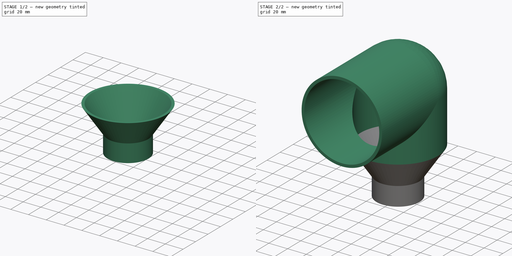
[diagram: build sequence overview — one tinted view per stage of 2, left to right]
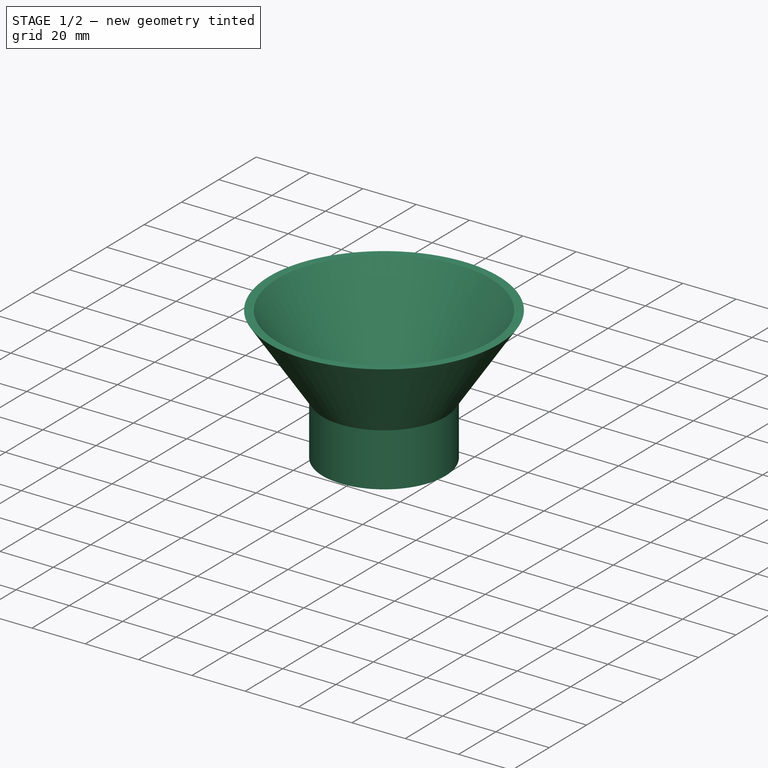
[diagram: stage 1 of 2 — iso view after this stage's code; geometry added in this stage tinted green]
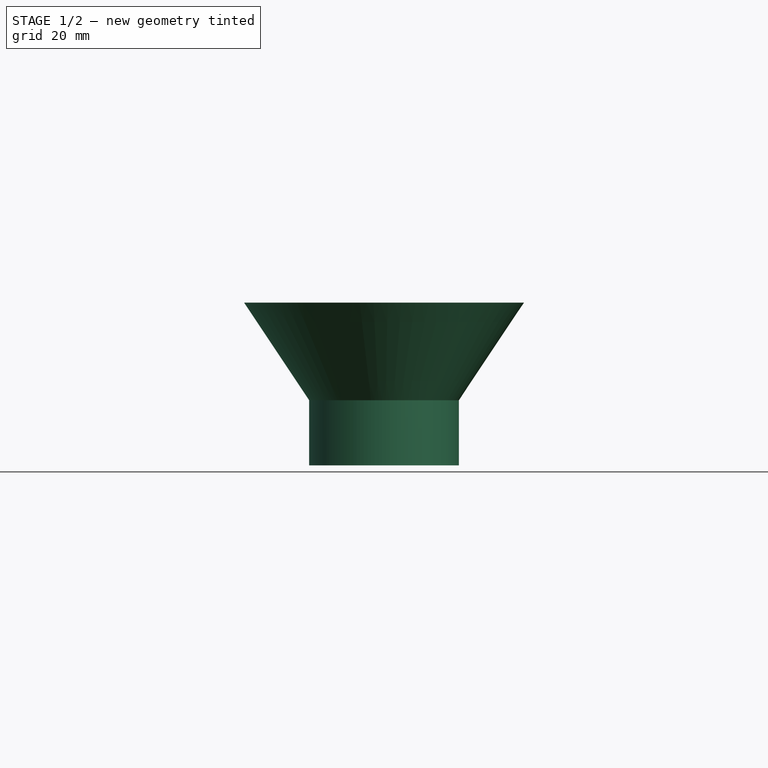
[diagram: stage 1 of 2 — front view after this stage's code; geometry added in this stage tinted green]
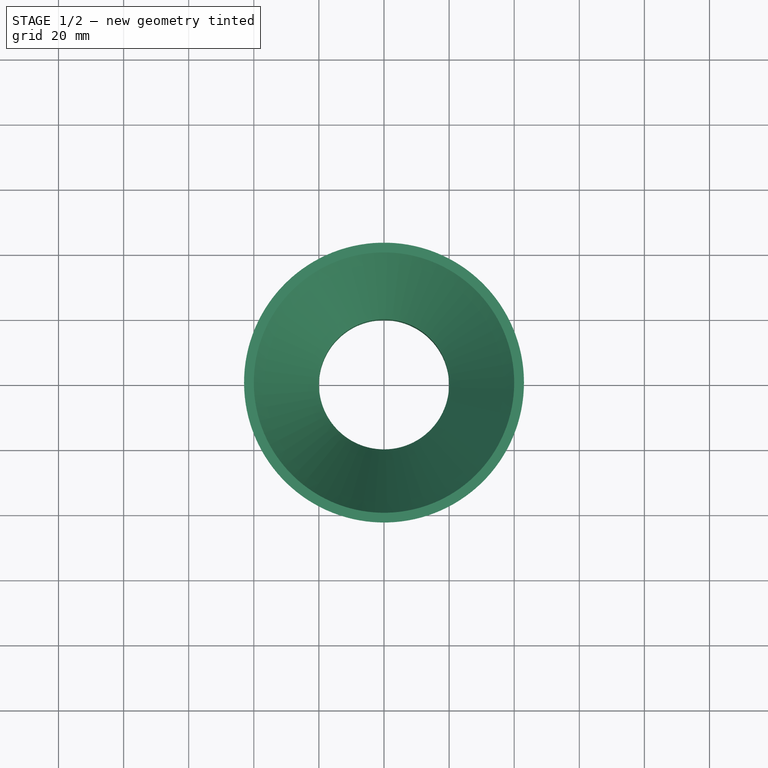
[diagram: stage 1 of 2 — top view after this stage's code; geometry added in this stage tinted green]
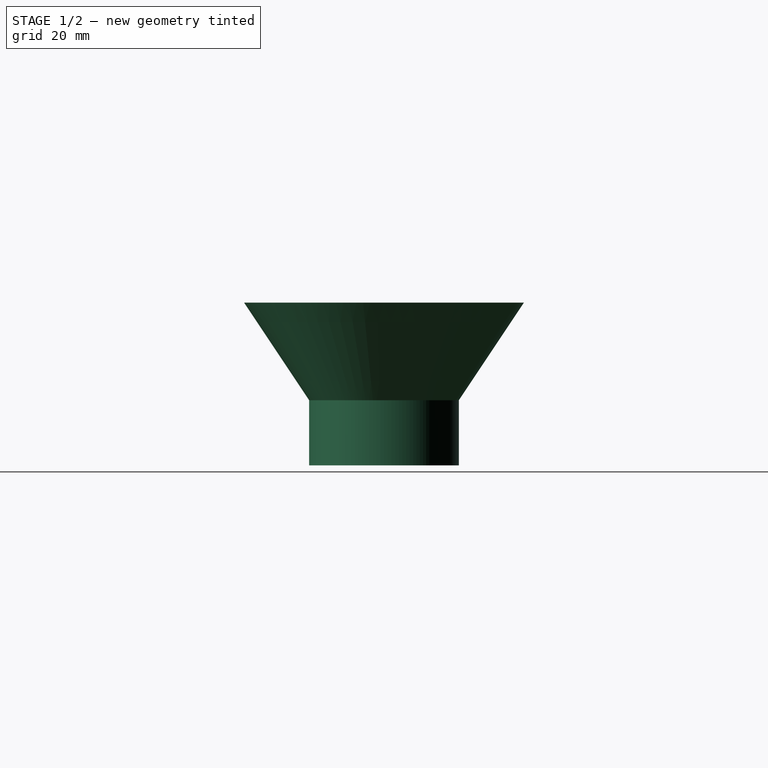
[diagram: stage 1 of 2 — right view after this stage's code; geometry added in this stage tinted green]
FCSTD DOCUMENT  (FreeCAD 1.0R39285 (Git))
Label: Lesson_26
License: All rights reserved
LicenseURL: http://en.wikipedia.org/wiki/All_rights_reserved
objects: Sketcher::SketchObject×2, PartDesign::Revolution×1, PartDesign::AdditivePipe×1, PartDesign::Body×1
note: 11 computed .brp shape members not serialized (recipe doc carries the construction recipe); baked Part::Feature solids carry a one-line shape summary decoded from their .brp

FEATURE [Sketcher::SketchObject] Sketch
  ArcFitTolerance = 1e-06
  AttachmentSupport = -> [XZ_Plane]
  FullyConstrained = true
  MakeInternals = false
  MapMode = 5
  Placement = pos=(0,0,0) rot=(1,0,0;1.5708rad)
  sketch-geometry (9):
    g0: LineSegment StartX=-23 StartY=0 StartZ=0 EndX=-23 EndY=20 EndZ=0
    g1: LineSegment StartX=-23 StartY=20 StartZ=0 EndX=-43 EndY=50 EndZ=0
    g2: LineSegment [constr] StartX=-43 StartY=50 StartZ=0 EndX=-43 EndY=60 EndZ=0
    g3: LineSegment [constr] StartX=-43 StartY=60 StartZ=0 EndX=-40 EndY=60 EndZ=0
    g4: LineSegment [constr] StartX=-40 StartY=60 StartZ=0 EndX=-40 EndY=50 EndZ=0
    g5: LineSegment StartX=-40 StartY=50 StartZ=0 EndX=-20 EndY=20 EndZ=0
    g6: LineSegment StartX=-20 StartY=20 StartZ=0 EndX=-20 EndY=0 EndZ=0
    g7: LineSegment StartX=-20 StartY=0 StartZ=0 EndX=-23 EndY=0 EndZ=0
    g8: LineSegment StartX=-43 StartY=50 StartZ=0 EndX=-40 EndY=50 EndZ=0
  constraints (26):
    c: Vertical(g0)
    c: Coincident(g0,g1)
    c: Coincident(g1,g2)
    c: Vertical(g2)
    c: Coincident(g2,g3)
    c: Horizontal(g3)
    c: Coincident(g3,g4)
    c: Coincident(g4,g5)
    c: Coincident(g5,g6)
    c: Vertical(g6)
    c: Coincident(g6,g7)
    c: Coincident(g7,g0)
    c: Parallel(g1,g5)
    c: Vertical(g4)
    c: Horizontal(g7)
    c: Horizontal(g4,g1)
    c: Horizontal(g5,g0)
    c: Distance(g3,g3) = 3
    c: PointOnObject(g0,g-1)
    c: DistanceY(g2,g2) = 10
    c: DistanceY(g0,g0) = 20
    c: DistanceY(g0,g1) = 30
    c: DistanceX(g3,g-1) = 40
    c: DistanceX(g6,g-1) = 20
    c: Coincident(g8,g1)
    c: Coincident(g8,g4)
FEATURE [PartDesign::Revolution] Revolution
  Angle = 360
  Angle2 = 60
  Axis = (0,2e-16,1)
  Base = (0,0,0)
  Placement = pos=(0,0,0) rot=(1,0,0;1.5708rad)
  Profile = -> Sketch
  ReferenceAxis = -> Sketch [V_Axis]
  Refine = true
  Suppressed = false
  Type = 0
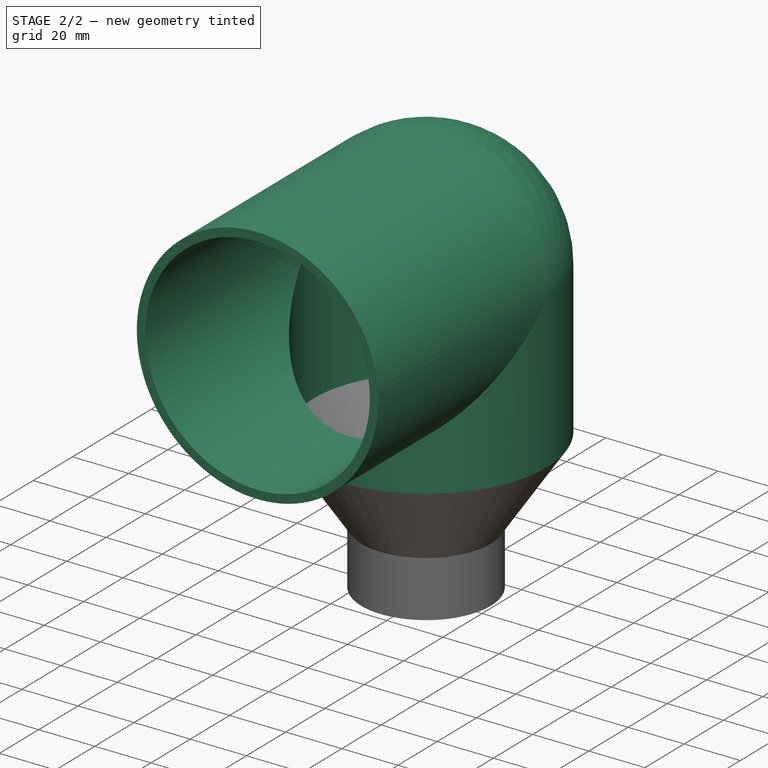
[diagram: stage 2 of 2 — iso view after this stage's code; geometry added in this stage tinted green]
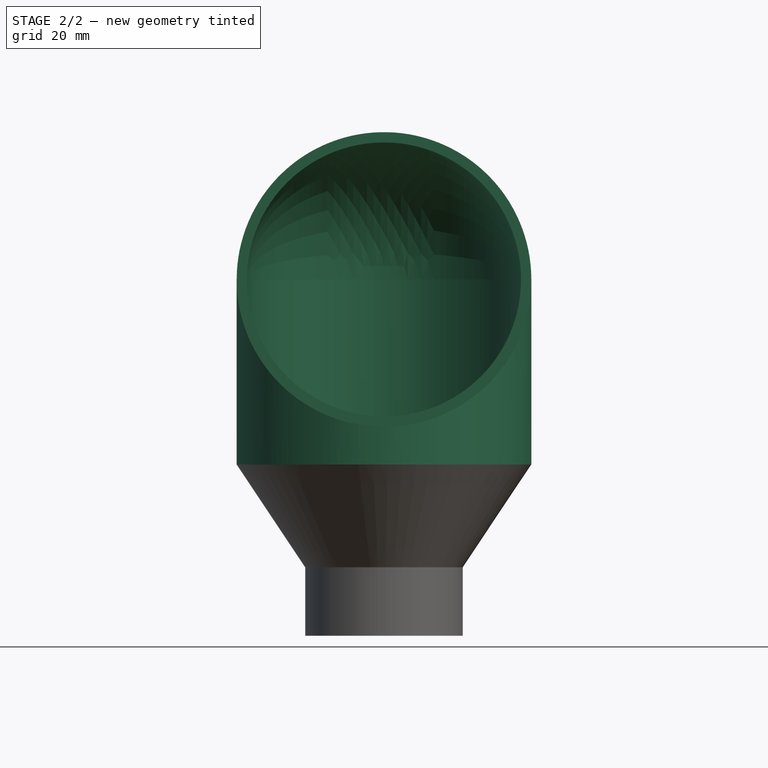
[diagram: stage 2 of 2 — front view after this stage's code; geometry added in this stage tinted green]
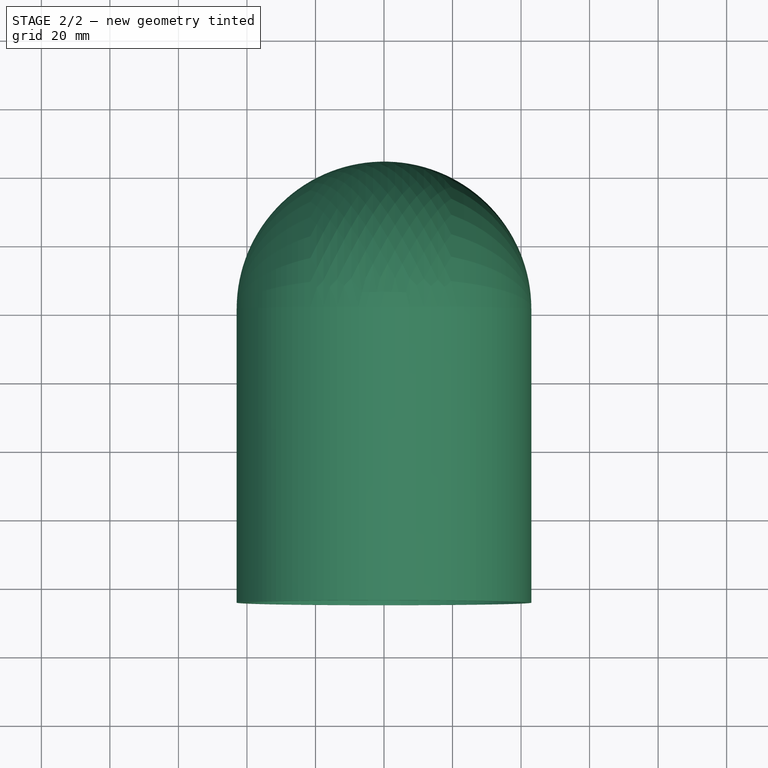
[diagram: stage 2 of 2 — top view after this stage's code; geometry added in this stage tinted green]
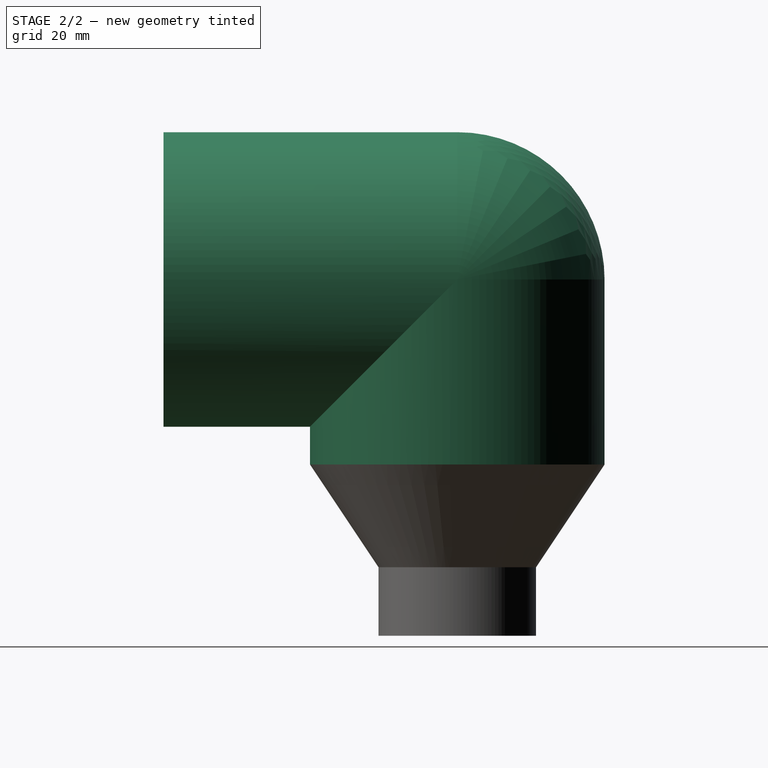
[diagram: stage 2 of 2 — right view after this stage's code; geometry added in this stage tinted green]
FEATURE [Sketcher::SketchObject] Sketch001
  ArcFitTolerance = 1e-06
  AttachmentSupport = -> [YZ_Plane]
  ExternalGeometry = -> [Revolution]
  FullyConstrained = false
  MakeInternals = false
  MapMode = 5
  Placement = pos=(0,0,0) rot=(0.57735,0.57735,0.57735;2.0944rad)
  expr: Constraints[4] = 44 + 10
  sketch-geometry (2):
    g0: LineSegment StartX=0 StartY=50 StartZ=0 EndX=0 EndY=104 EndZ=0
    g1: LineSegment StartX=0 StartY=104 StartZ=0 EndX=-85.7569 EndY=104 EndZ=0
  constraints (7):
    c: Vertical(g0)
    c: Coincident(g0,g1)
    c: Horizontal(g1)
    c: PointOnObject(g0,g-2)
    c: DistanceY(g0,g0) = 54
    c: DistanceX(g-3,g0) = 43
    c: Horizontal(g0,g-3)
FEATURE [PartDesign::AdditivePipe] AdditivePipe
  AuxilleryCurvelinear = true
  AuxillerySpineTangent = false
  BaseFeature = -> Revolution
  Binormal = (0,0,0)
  Mode = 0
  Placement = pos=(0,0,0) rot=(1,0,0;1.5708rad)
  Profile = -> Revolution [Face3]
  Refine = true
  Spine = -> Sketch001 [Edge1,Edge2]
  SpineTangent = false
  Suppressed = false
  Transformation = 0
  Transition = 2
FEATURE [PartDesign::Body] Body
  AllowCompound = true
  Group = -> [Sketch,Revolution,Sketch001,AdditivePipe]
  Origin = -> Origin
  Tip = -> AdditivePipe
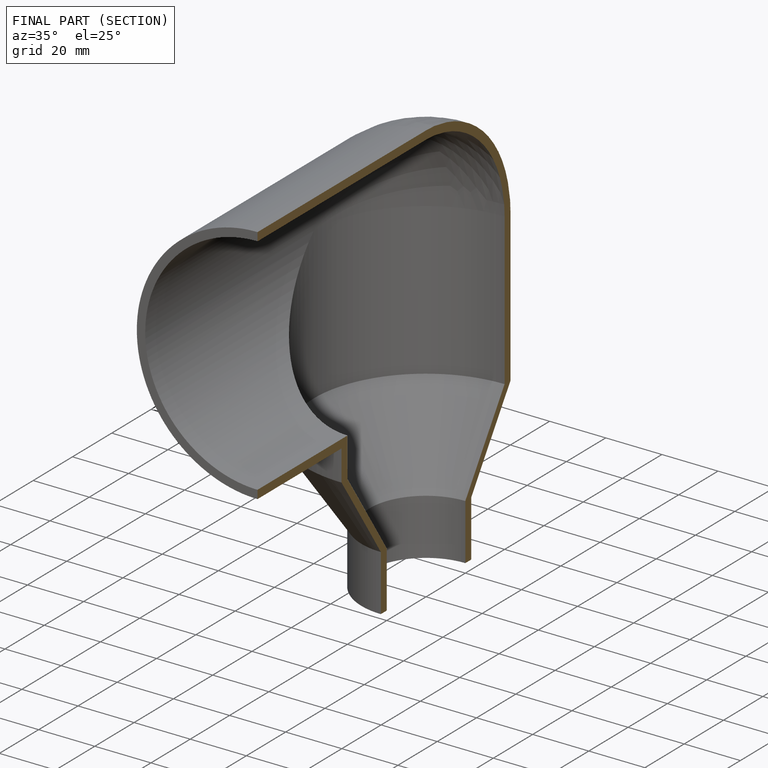
[diagram: finished part — half-section view (interior)]
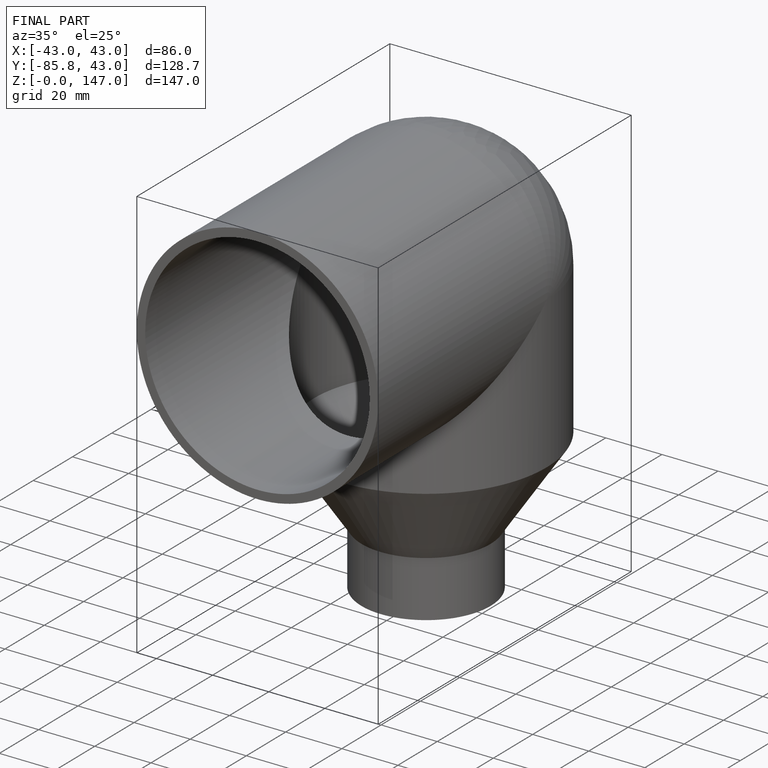
[diagram: finished part — iso view with bounding-box wireframe]
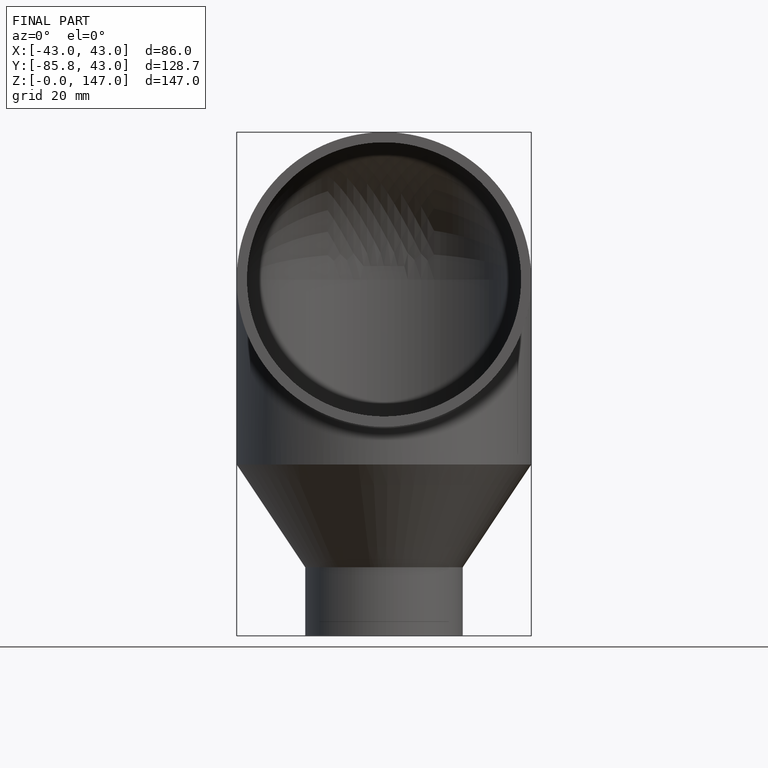
[diagram: finished part — front view with bounding-box wireframe]
